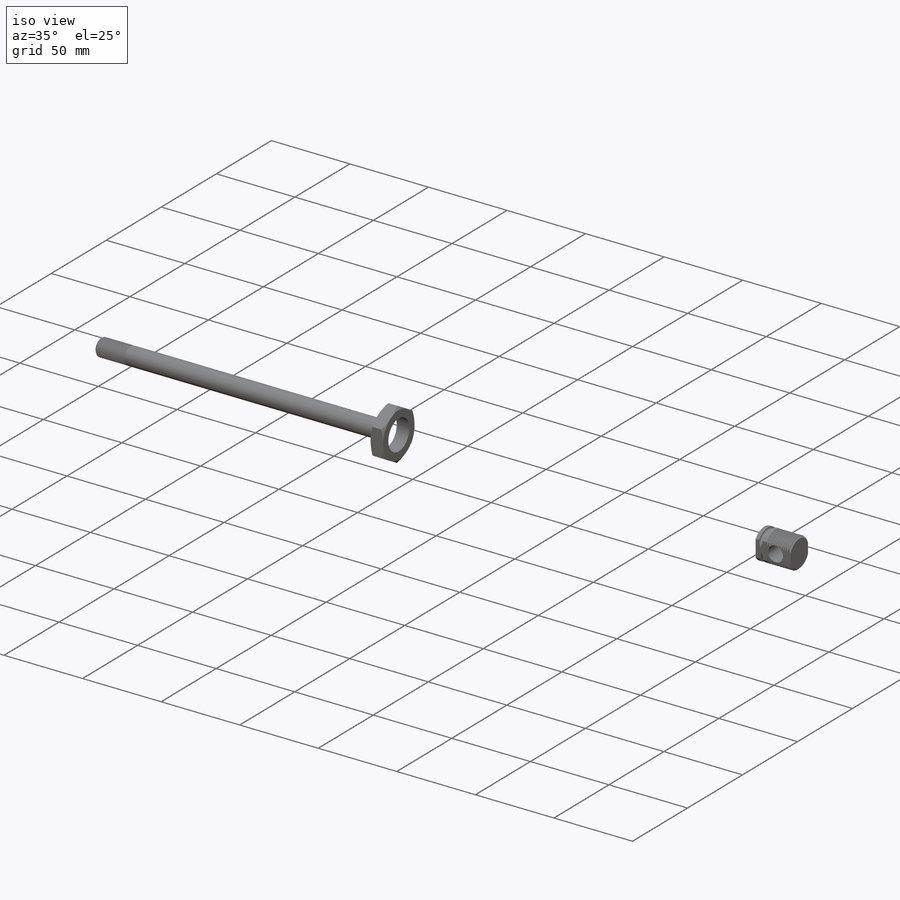
[diagram: iso view]
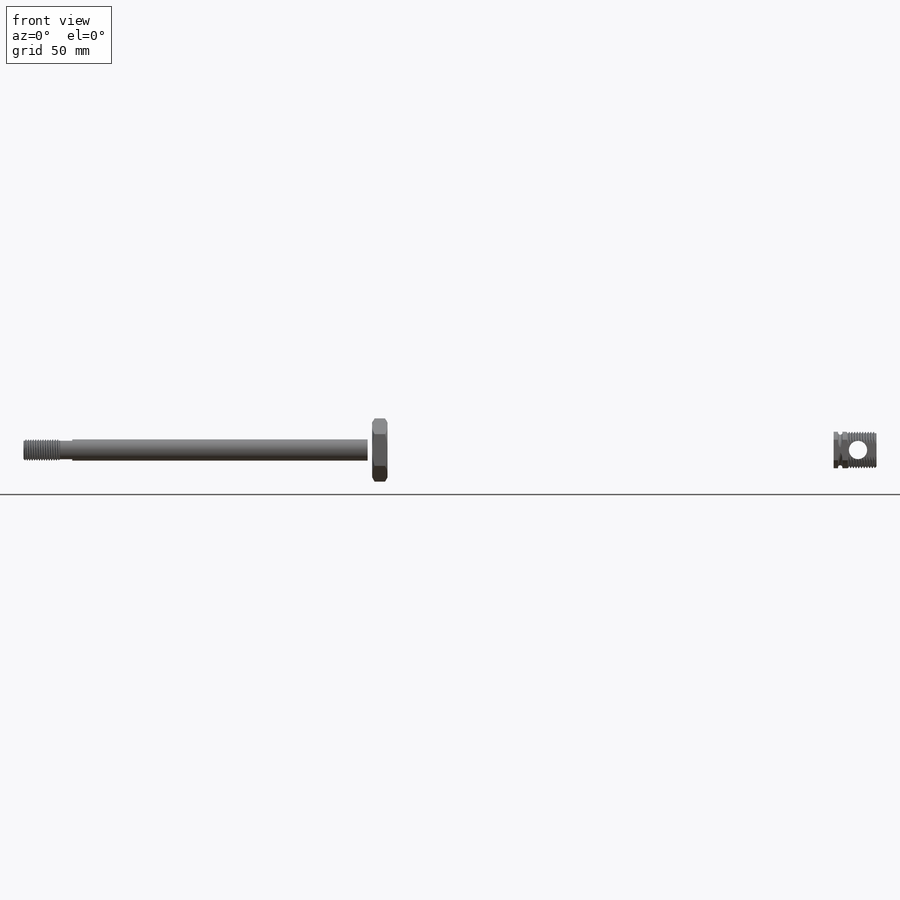
[diagram: front view]
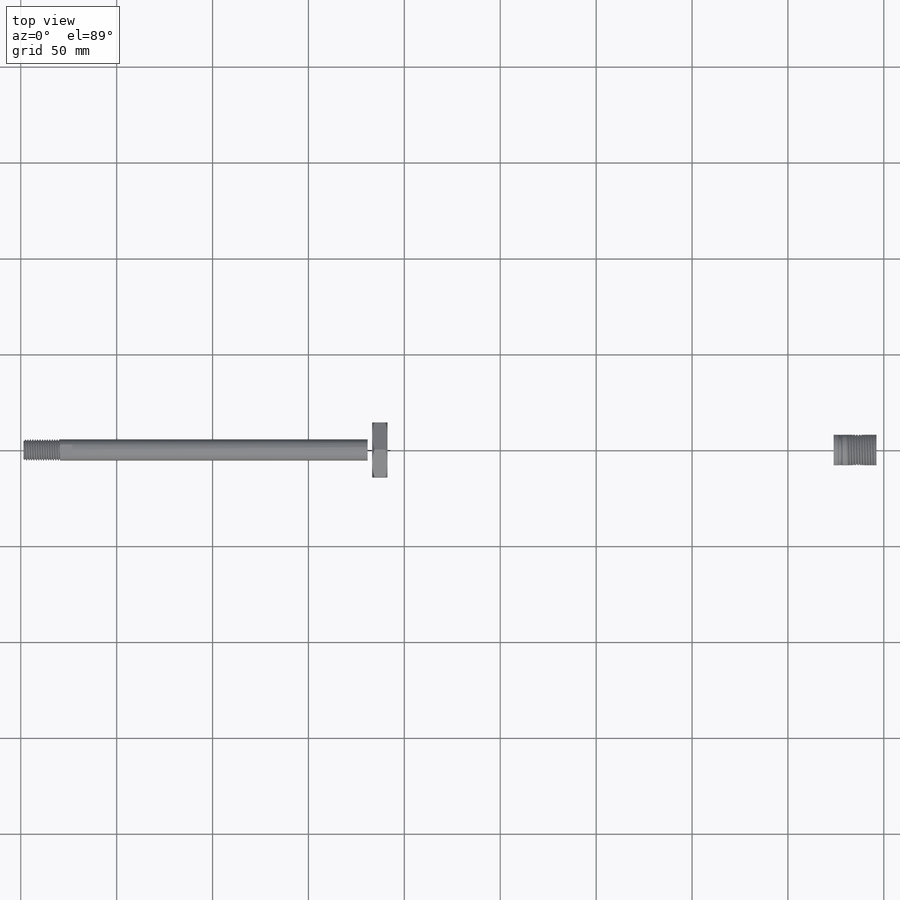
[diagram: top view]
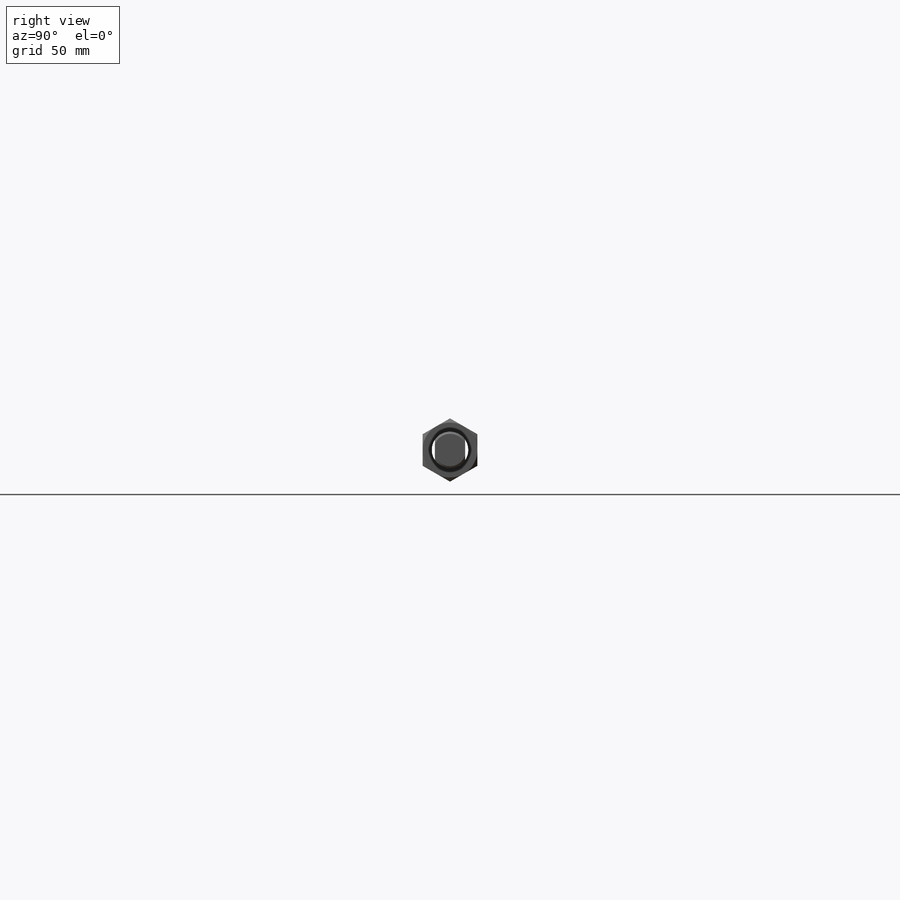
[diagram: right view]
SOLIDWORKS PART (.sldprt)
format: sldprt  version: not decoded by parser v0  size: 2,197,504 bytes
history: native  units: mm
features: sketch x31, cut_extrude x10, extrude x5, revolve x4, chamfer x4, helix x4, sweep x4, plane x4, cut_revolve x2, move_body x2, boolean_combine x2, material x1 (+15 scaffold rows collapsed)
feature tree (88):
  scaffold x15  (default folders/planes/origin — collapsed)
  material  "Material <not specified>"
  sketch  "Sketch1"  dims[c1.Port Size=10.287mm c1.Pivot Size=9.525mm c1.D3=11.3157mm c1.Thread Length=19.05mm c1.Wrench Flat=3.048mm c1.WF Size=9.652mm c1.Rod Thread=11.1125mm c1.Mount Depth=12.7mm c1.Mount Dia=19.05mm c1.OD=39.624mm c1.Pivot Location=9.652mm c1.Port Location=20.574mm c1.Body End=12.7mm c1.Rear Mount=19.05mm c1.Extended Length=~227.866265mm c1.D5=19.05mm c1.Stroke Length=152.4mm c2.Extended Length=~278.666265mm c2.Retracted Length=~240.566265mm c2.D1=244.602mm c2.Mount Shoulder=2.286mm c2.D2=8.001mm c2.D3=12.7mm c2.D6=~4.111548mm c3.Retracted Length=292.354mm c3.D6=5.715mm c3.D7=~2.116667mm c3.D4=~2.116667mm c3.WF Width=6.35mm c3.Mount Depth=16.002mm c4.D7=~2.116667mm c4.Front Port Location=38.1mm]
  sketch  "Sketch2"
  revolve  "Revolve1"  Angle=360deg
  chamfer  "Chamfer1"  Distance=0.9525mm Angle=45deg
  sketch  "Sketch3"
  helix  "Helix/Spiral1"  Pitch=20.32mm Rod Pitch=1.27mm
  sketch  "Sketch4"  dims[c1.D1=~2.57473mm c2.D1=60.0deg c2.D2=~0.15875mm c2.D3=0.635mm]
  sweep  "Cut-Sweep1"
  sketch  "Sketch18"  dims[c1.D1=43.688mm c1.D2=0.254mm c2.D1=160.401mm c2.Rod Diameter=~6.72934mm c3.Rod Diameter=11.0998mm]
  revolve  "Revolve4"  Angle=360deg
  sketch  "Sketch5"
  revolve  "Revolve2"  Angle=360deg
  sketch  "Sketch32"
  cut_extrude  "Cut-Extrude9"  [1 undecoded]
  sketch  "Sketch33"  dims[c1.D1=~2.030166mm c2.D1=40.0deg]
  cut_extrude  "Cut-Extrude10"  [1 undecoded]
  chamfer  "Chamfer2"  Distance=1.058333mm Angle=45deg
  sketch  "Sketch6"
  helix  "Helix/Spiral2"  Pitch=17.413111mm Mount Pitch=1.411111mm
  sketch  "Sketch7"  dims[c1.D1=~1.388243mm c2.D1=60.0deg c2.D2=~0.176389mm c2.D3=~0.705556mm]
  sweep  "Cut-Sweep2"
  chamfer  "Chamfer3"  Distance=1.058333mm Angle=45deg
  sketch  "Sketch11"
  cut_extrude  "Cut-Extrude1"  [1 undecoded]
  sketch  "Sketch27"
  helix  "Helix/Spiral4"  Pitch=15.875mm Rear Pitch=1.411111mm
  sketch  "Sketch28"  dims[c1.D1=~0.176389mm c1.D2=~0.705556mm c1.D3=~1.265663mm c2.D3=60.0deg]
  sweep  "Cut-Sweep4"
  sketch  "Sketch16"  dims[D1=0.381mm D2=2.286mm D3=0.635mm]
  cut_revolve  "Cut-Revolve2"  Angle=360deg
  sketch  "Sketch26"
  extrude  "Boss-Extrude5"  Depth=2.286mm
  sketch  "Sketch17"
  extrude  "Boss-Extrude3"  [1 undecoded]
  sketch  "Sketch12"  dims[Pivot Flat=15.748mm D2=15.748mm]
  cut_extrude  "Cut-Extrude2"  [1 undecoded]
  sketch  "Sketch8"
  revolve  "Revolve3"  Angle=360deg
  sketch  "Sketch9"  dims[c1.D1=~1.024856mm c2.D1=45.0deg c3.D1=~1.024856mm c4.D1=45.0deg c5.D1=~1.024856mm c6.D1=45.0deg c6.D2=6.35mm c6.D3=37.6428mm c6.D4=~2.483538mm c7.D4=45.0deg c7.D5=6.35mm]
  cut_revolve  "Cut-Revolve1"  Angle=360deg
  chamfer  "Chamfer4"  Distance=1.016mm Angle=45deg
  plane  "Plane1"
  sketch  "Sketch13"  dims[Hex=28.575mm]
  extrude  "Boss-Extrude2"  Depth=8.001mm
  sketch  "Sketch14"
  cut_extrude  "Cut-Extrude3"  [1 undecoded]
  sketch  "Sketch15"
  cut_extrude  "Cut-Extrude4"  [1 undecoded]
  move_body  "Body-Move/Copy3"
  plane  "Plane2"
  sketch  "Sketch19"  dims[Bore Size=38.1mm D1=11.3157mm]
  plane  "Plane3"
  sketch  "Sketch20"
  cut_extrude  "Cut-Extrude5"  [1 undecoded]
  sketch  "Sketch21"
  cut_extrude  "Cut-Extrude6"  [1 undecoded]
  sketch  "Sketch22"
  extrude  "Boss-Extrude4"  Depth=6.604mm Port Depth=6.604mm
  sketch  "Sketch23"
  helix  "Helix/Spiral3"  Pitch=7.544741mm Port Pitch=0.940741mm
  sketch  "Sketch25"  dims[c1.D1=~0.628177mm c2.D1=60.0deg c2.D2=~0.117593mm c2.D3=~0.47037mm]
  sweep  "Cut-Sweep3"
  move_body  "Body-Move/Copy4"
  boolean_combine  "Combine3"
  boolean_combine  "Combine4"
  plane  "Plane4"
  sketch  "Sketch29"  dims[Rear Nut=28.575mm]
  extrude  "Boss-Extrude6"  Depth=8.001mm
  sketch  "Sketch30"
  cut_extrude  "Cut-Extrude7"  [1 undecoded]
  sketch  "Sketch31"
  cut_extrude  "Cut-Extrude8"  [1 undecoded]
decode coverage: 31 of 68 modeling features carry decoded parameters
note: ~ marks probable driven/reference dimensions
note: 11 parameter values undecoded
summary: no parameter record found for 11 features; profile_refs inferred from adjacent sketches, not decoded
note: suppression state not decoded; provenance and decode notes live in map.json
